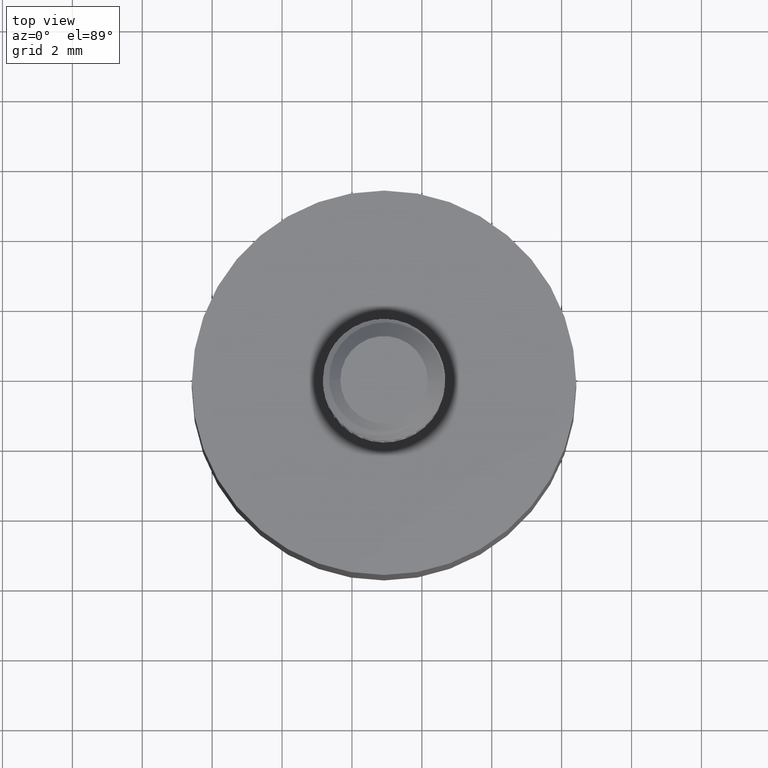
[diagram: clean part render]
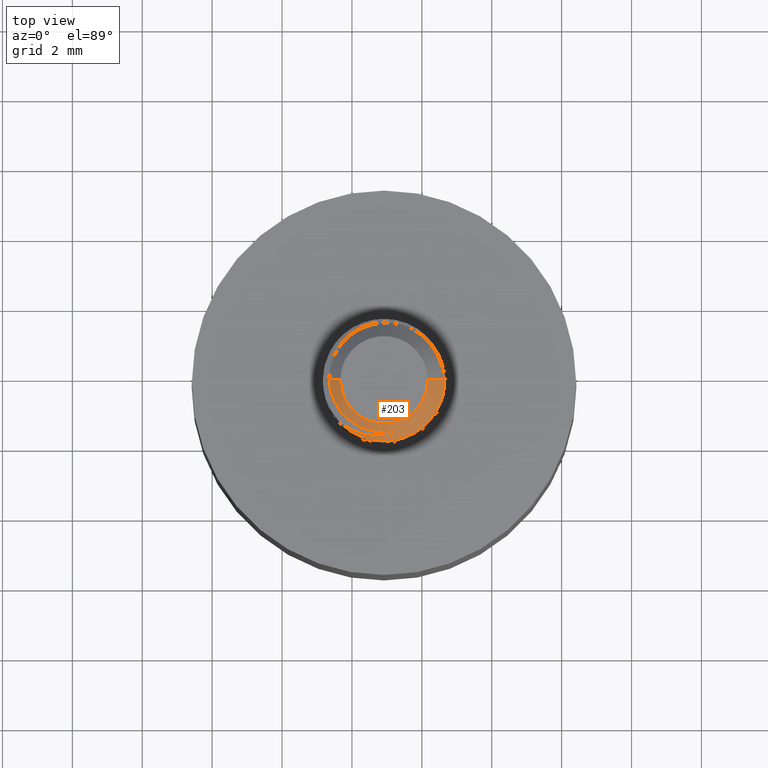
[diagram: same view with one face highlighted and labeled with its STEP entity id]
A machine part, top view. The second image highlights one B-rep face of the part: STEP entity #203.
In plain terms, the highlighted conical surface has half-angle 45 deg.
Its self-contained STEP definition (entity closure, byte-faithful):
#110 = VERTEX_POINT ( 'NONE', #695 ) ;
#114 = VERTEX_POINT ( 'NONE', #688 ) ;
#116 = EDGE_CURVE ( 'NONE', #114, #110, #726, .T. ) ;
#185 = EDGE_CURVE ( 'NONE', #209, #223, #1038, .T. ) ;
#186 = ORIENTED_EDGE ( 'NONE', *, *, #187, .F. ) ;
#187 = EDGE_CURVE ( 'NONE', #110, #209, #1037, .T. ) ;
#188 = ORIENTED_EDGE ( 'NONE', *, *, #116, .F. ) ;
#189 = ORIENTED_EDGE ( 'NONE', *, *, #190, .F. ) ;
#190 = EDGE_CURVE ( 'NONE', #220, #114, #1081, .T. ) ;
#198 = EDGE_CURVE ( 'NONE', #217, #223, #1125, .T. ) ;
#201 = EDGE_CURVE ( 'NONE', #217, #216, #1151, .T. ) ;
#203 = ADVANCED_FACE ( 'NONE', ( #1146 ), #1183, .T. ) ;
#204 = EDGE_LOOP ( 'NONE', ( #205, #206, #207, #208, #186, #188, #189 ) ) ;
#205 = ORIENTED_EDGE ( 'NONE', *, *, #219, .F. ) ;
#206 = ORIENTED_EDGE ( 'NONE', *, *, #201, .F. ) ;
#207 = ORIENTED_EDGE ( 'NONE', *, *, #198, .T. ) ;
#208 = ORIENTED_EDGE ( 'NONE', *, *, #185, .F. ) ;
#209 = VERTEX_POINT ( 'NONE', #1184 ) ;
#216 = VERTEX_POINT ( 'NONE', #1191 ) ;
#217 = VERTEX_POINT ( 'NONE', #1190 ) ;
#219 = EDGE_CURVE ( 'NONE', #216, #220, #1189, .T. ) ;
#220 = VERTEX_POINT ( 'NONE', #1185 ) ;
#223 = VERTEX_POINT ( 'NONE', #1247 ) ;
#687 = CARTESIAN_POINT ( 'NONE',  ( 0.03610148486744245400, 0.1494433794018338600, 0.4109161750861713400 ) ) ;
#688 = CARTESIAN_POINT ( 'NONE',  ( 0.1006794513422295500, 0.1254314919343674200, 0.4109161750861711800 ) ) ;
#695 = CARTESIAN_POINT ( 'NONE',  ( -0.01406995871162870100, 0.1022235663678852100, 0.4109161750861713400 ) ) ;
#723 = DIRECTION ( 'NONE',  ( 1.000000000000000000, 0.0000000000000000000, 0.0000000000000000000 ) ) ;
#724 = DIRECTION ( 'NONE',  ( 0.0000000000000000000, 0.0000000000000000000, -1.000000000000000000 ) ) ;
#725 = AXIS2_PLACEMENT_3D ( 'NONE', #687, #724, #723 ) ;
#726 = CIRCLE ( 'NONE', #725, 0.06889763779527557900 ) ;
#1024 = CARTESIAN_POINT ( 'NONE',  ( -0.02541688418351049900, 0.1437786896104408500, 0.4182954438304908300 ) ) ;
#1025 = CARTESIAN_POINT ( 'NONE',  ( -0.02445675608298888300, 0.1382238040941929600, 0.4184903922812139900 ) ) ;
#1026 = CARTESIAN_POINT ( 'NONE',  ( -0.02097243200277486600, 0.1273390351833763000, 0.4188760042791079800 ) ) ;
#1027 = CARTESIAN_POINT ( 'NONE',  ( -0.01850875433142487900, 0.1222088570440031400, 0.4190541381538441800 ) ) ;
#1028 = CARTESIAN_POINT ( 'NONE',  ( -0.009066347495386687200, 0.1080152627957388000, 0.4195860411790633400 ) ) ;
#1029 = CARTESIAN_POINT ( 'NONE',  ( 5.229751107569115100E-005, 0.1003951282017848400, 0.4200006437914710600 ) ) ;
#1030 = CARTESIAN_POINT ( 'NONE',  ( 0.02077998916740425600, 0.09135835622209921600, 0.4208141646619439300 ) ) ;
#1031 = CARTESIAN_POINT ( 'NONE',  ( 0.03260299071661045000, 0.08982930167767880200, 0.4211845812894704500 ) ) ;
#1032 = CARTESIAN_POINT ( 'NONE',  ( 0.04939357278848331000, 0.09265181626865919000, 0.4217639333585729800 ) ) ;
#1033 = CARTESIAN_POINT ( 'NONE',  ( 0.05483914833167687100, 0.09442218997640707000, 0.4219692906760642600 ) ) ;
#1034 = CARTESIAN_POINT ( 'NONE',  ( 0.06503636809800826500, 0.09951777984043812300, 0.4223912529384008500 ) ) ;
#1035 = CARTESIAN_POINT ( 'NONE',  ( 0.06966815954116356600, 0.1027608202508115300, 0.4226024420593199000 ) ) ;
#1036 = CARTESIAN_POINT ( 'NONE',  ( 0.07382450167280711600, 0.1067119623518204100, 0.4228138128814468700 ) ) ;
#1037 = B_SPLINE_CURVE_WITH_KNOTS ( 'NONE', 3,
 ( #1079, #1078, #1077, #1076, #1075, #1074, #1073, #1072, #1071, #1070, #1069, #1068, #1067, #1066 ),
 .UNSPECIFIED., .F., .F.,
 ( 4, 2, 2, 2, 2, 2, 4 ),
 ( 0.0000000000000000000, 0.0006208181485837711300, 0.0009312272228756564800, 0.001241636297167541600, 0.001552045371459427000, 0.001862454445751312100, 0.002483272594335083200 ),
 .UNSPECIFIED. ) ;
#1038 = B_SPLINE_CURVE_WITH_KNOTS ( 'NONE', 3,
 ( #1036, #1035, #1034, #1033, #1032, #1031, #1030, #1029, #1028, #1027, #1026, #1025, #1024, #1083 ),
 .UNSPECIFIED., .F., .F.,
 ( 4, 2, 2, 2, 2, 2, 4 ),
 ( 0.0000000000000000000, 0.0004310737825565726300, 0.0008621475651131452500, 0.001724295130226290500, 0.002586442695339435800, 0.003017516477896008400, 0.003448590260452581000 ),
 .UNSPECIFIED. ) ;
#1058 = CARTESIAN_POINT ( 'NONE',  ( 0.1006794513422295500, 0.1254314919343674200, 0.4109161750861711800 ) ) ;
#1059 = CARTESIAN_POINT ( 'NONE',  ( 0.1033142453367897300, 0.1332044441624772600, 0.4111555681404249800 ) ) ;
#1060 = CARTESIAN_POINT ( 'NONE',  ( 0.1045083321840533500, 0.1412856068844805800, 0.4114069655648354100 ) ) ;
#1061 = CARTESIAN_POINT ( 'NONE',  ( 0.1042515754774580200, 0.1494433794018303300, 0.4116637222714313300 ) ) ;
#1066 = CARTESIAN_POINT ( 'NONE',  ( 0.07382450167280711600, 0.1067119623518204100, 0.4228138128814468700 ) ) ;
#1067 = CARTESIAN_POINT ( 'NONE',  ( 0.06847105218513287200, 0.1004934077288503200, 0.4216948762840395700 ) ) ;
#1068 = CARTESIAN_POINT ( 'NONE',  ( 0.06186049086312713600, 0.09549812573016816500, 0.4205776003974869800 ) ) ;
#1069 = CARTESIAN_POINT ( 'NONE',  ( 0.05085170085593163100, 0.09032064128838157600, 0.4190117154241747600 ) ) ;
#1070 = CARTESIAN_POINT ( 'NONE',  ( 0.04693443519282251100, 0.08895932873724138300, 0.4184991779612035100 ) ) ;
#1071 = CARTESIAN_POINT ( 'NONE',  ( 0.03904401720330806500, 0.08711302328349024300, 0.4175438919866784100 ) ) ;
#1072 = CARTESIAN_POINT ( 'NONE',  ( 0.03502795635592365800, 0.08661792653112911100, 0.4171094642170771200 ) ) ;
#1073 = CARTESIAN_POINT ( 'NONE',  ( 0.02689120759807540500, 0.08635294521974933000, 0.4161830228328294900 ) ) ;
#1074 = CARTESIAN_POINT ( 'NONE',  ( 0.02277297878646946900, 0.08660118755455235900, 0.4156996131880185100 ) ) ;
#1075 = CARTESIAN_POINT ( 'NONE',  ( 0.01476907917405113700, 0.08782867728397640600, 0.4147347570989027300 ) ) ;
#1076 = CARTESIAN_POINT ( 'NONE',  ( 0.01083927834633519000, 0.08880432863393390700, 0.4142483344130902800 ) ) ;
#1077 = CARTESIAN_POINT ( 'NONE',  ( -0.0007279262466758959100, 0.09284629377385776600, 0.4127774849215763400 ) ) ;
#1078 = CARTESIAN_POINT ( 'NONE',  ( -0.007813128852158388000, 0.09690104146972462800, 0.4118245597234582700 ) ) ;
#1079 = CARTESIAN_POINT ( 'NONE',  ( -0.01406995871162870100, 0.1022235663678852100, 0.4109161750861713400 ) ) ;
#1081 = B_SPLINE_CURVE_WITH_KNOTS ( 'NONE', 3,
 ( #1061, #1060, #1059, #1058 ),
 .UNSPECIFIED., .F., .F.,
 ( 4, 4 ),
 ( 0.008616216186948244500, 0.009234177957161596200 ),
 .UNSPECIFIED. ) ;
#1083 = CARTESIAN_POINT ( 'NONE',  ( -0.02561376359098388800, 0.1494433794017981700, 0.4180985644230206800 ) ) ;
#1122 = DIRECTION ( 'NONE',  ( -0.7071067811865440200, 0.0000000000000000000, -0.7071067811865510100 ) ) ;
#1123 = VECTOR ( 'NONE', #1122, 39.37007874015748100 ) ;
#1124 = CARTESIAN_POINT ( 'NONE',  ( -0.01311111355775444000, 0.1494433794018338600, 0.4306012144562502100 ) ) ;
#1125 = LINE ( 'NONE', #1124, #1123 ) ;
#1128 = CARTESIAN_POINT ( 'NONE',  ( 0.03610148486744245400, 0.1494433794018338600, 0.4306012144562502100 ) ) ;
#1146 = FACE_OUTER_BOUND ( 'NONE', #204, .T. ) ;
#1147 = DIRECTION ( 'NONE',  ( 1.000000000000000000, 0.0000000000000000000, 0.0000000000000000000 ) ) ;
#1148 = DIRECTION ( 'NONE',  ( 0.0000000000000000000, 0.0000000000000000000, 1.000000000000000000 ) ) ;
#1149 = CARTESIAN_POINT ( 'NONE',  ( 0.03610148486744245400, 0.1494433794018338600, 0.4306012144562502100 ) ) ;
#1150 = AXIS2_PLACEMENT_3D ( 'NONE', #1149, #1148, #1147 ) ;
#1151 = CIRCLE ( 'NONE', #1150, 0.04921259842519689500 ) ;
#1180 = DIRECTION ( 'NONE',  ( -1.000000000000000000, 0.0000000000000000000, 0.0000000000000000000 ) ) ;
#1181 = DIRECTION ( 'NONE',  ( 0.0000000000000000000, 0.0000000000000000000, -1.000000000000000000 ) ) ;
#1182 = AXIS2_PLACEMENT_3D ( 'NONE', #1128, #1181, #1180 ) ;
#1183 = CONICAL_SURFACE ( 'NONE', #1182, 0.04921259842519689500, 0.7853981633974433900 ) ;
#1184 = CARTESIAN_POINT ( 'NONE',  ( 0.07382450167280711600, 0.1067119623518204100, 0.4228138128814468700 ) ) ;
#1185 = CARTESIAN_POINT ( 'NONE',  ( 0.1042515754774580200, 0.1494433794018303300, 0.4116637222714313300 ) ) ;
#1186 = DIRECTION ( 'NONE',  ( 0.7071067811865440200, 8.659274570719312300E-017, -0.7071067811865510100 ) ) ;
#1187 = VECTOR ( 'NONE', #1186, 39.37007874015748100 ) ;
#1188 = CARTESIAN_POINT ( 'NONE',  ( 0.08531408329263935600, 0.1494433794018338600, 0.4306012144562502100 ) ) ;
#1189 = LINE ( 'NONE', #1188, #1187 ) ;
#1190 = CARTESIAN_POINT ( 'NONE',  ( -0.01311111355775444000, 0.1494433794018338600, 0.4306012144562502100 ) ) ;
#1191 = CARTESIAN_POINT ( 'NONE',  ( 0.08531408329263935600, 0.1494433794018338600, 0.4306012144562502100 ) ) ;
#1247 = CARTESIAN_POINT ( 'NONE',  ( -0.02561376359098388800, 0.1494433794017981700, 0.4180985644230206800 ) ) ;